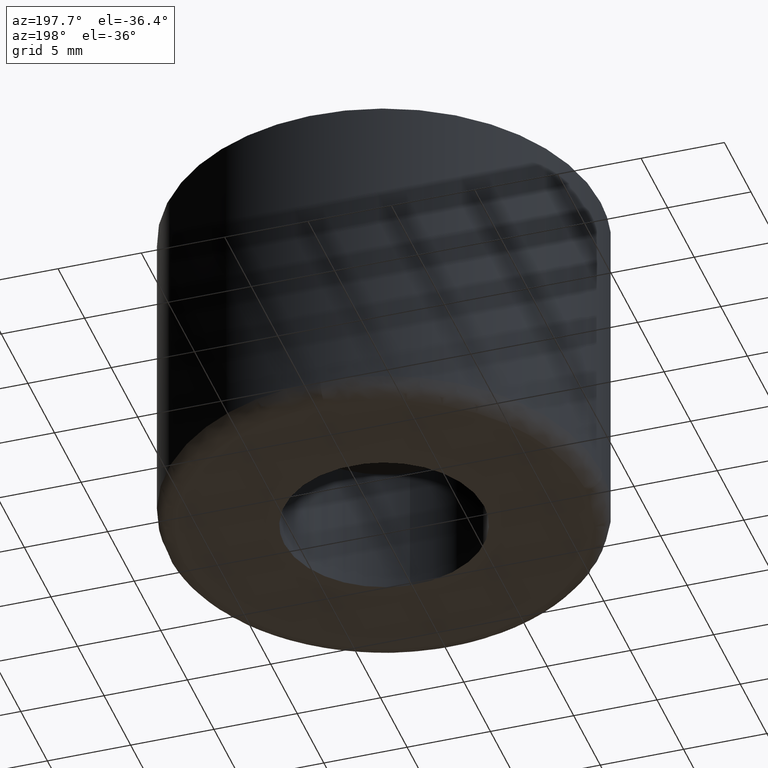
[diagram: clean part render]
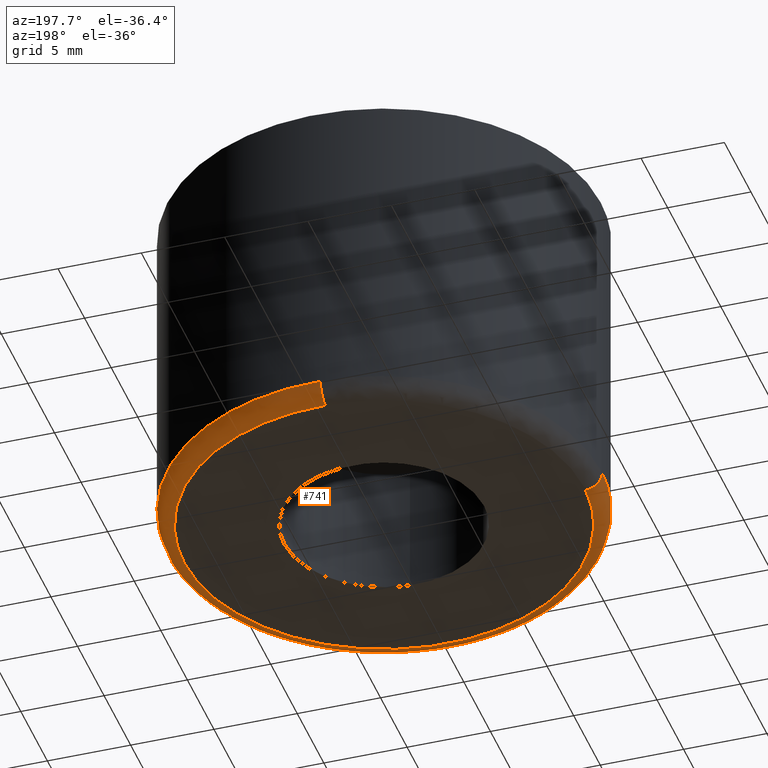
[diagram: same view with one face highlighted and labeled with its STEP entity id]
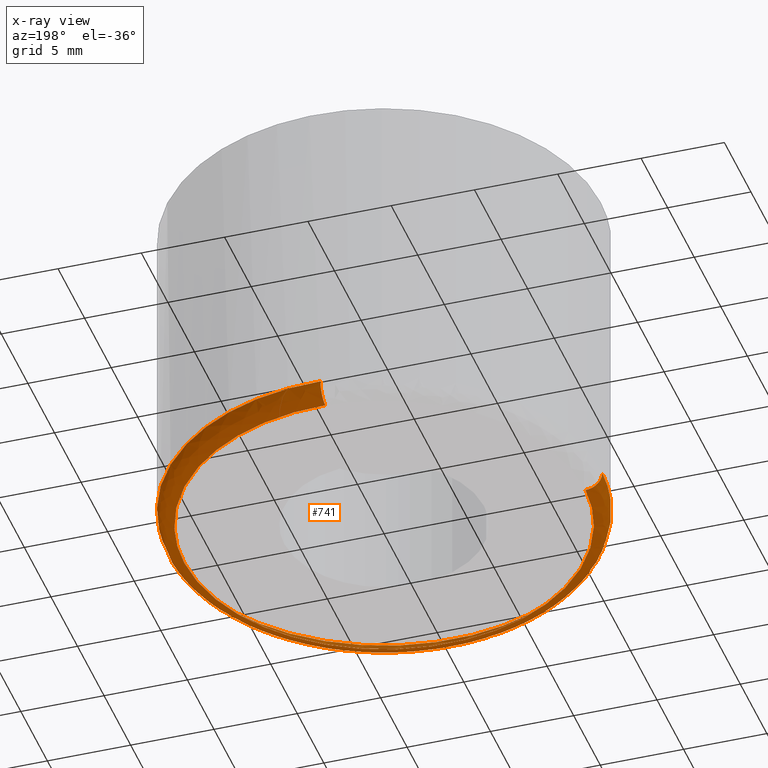
[diagram: x-ray of the same camera — body ghosted, the highlighted face saturated]
A machine part, auxiliary view. The second image highlights one B-rep face of the part: STEP entity #741.
The next image is the same camera in x-ray: the body ghosted, the highlighted face saturated — about 0% of this face is hidden behind the body in this view.
In plain terms, the highlighted face is a freeform B-spline surface patch.
Its self-contained STEP definition (entity closure, byte-faithful):
#62=CARTESIAN_POINT('',(12.687596999485550,-2.832822334452530,1.000000000000004));
#63=VERTEX_POINT('',#62);
#64=CARTESIAN_POINT('',(1.019960697844671,-12.959925932457899,1.000000000000026));
#65=VERTEX_POINT('',#64);
#66=CARTESIAN_POINT('',(12.687596999485553,-2.832822334452531,1.000000000000004));
#67=CARTESIAN_POINT('',(10.594716131196428,-12.206381947379535,1.000000000000014));
#68=CARTESIAN_POINT('',(1.019960697844671,-12.959925932457905,1.000000000000026));
#76=(BOUNDED_CURVE()B_SPLINE_CURVE(2,(#66,#67,#68),.UNSPECIFIED.,.F.,.U.)B_SPLINE_CURVE_WITH_KNOTS((3,3),(0.537286560370751,0.736331400453952),.UNSPECIFIED.)CURVE()GEOMETRIC_REPRESENTATION_ITEM()RATIONAL_B_SPLINE_CURVE((0.925662740296602,0.762027680026814,0.969723564491107))REPRESENTATION_ITEM(''));
#77=EDGE_CURVE('',#63,#65,#76,.T.);
#135=CARTESIAN_POINT('',(13.0,0.0,1.000000000000014));
#136=VERTEX_POINT('',#135);
#137=CARTESIAN_POINT('',(13.0,0.0,1.000000000000014));
#138=CARTESIAN_POINT('',(12.999999999999996,-1.433637033025100,1.000000000000014));
#139=CARTESIAN_POINT('',(12.687596999485551,-2.832822334452530,1.000000000000004));
#147=(BOUNDED_CURVE()B_SPLINE_CURVE(2,(#137,#138,#139),.UNSPECIFIED.,.F.,.U.)B_SPLINE_CURVE_WITH_KNOTS((3,3),(0.500000000000000,0.537286560370751),.UNSPECIFIED.)CURVE()GEOMETRIC_REPRESENTATION_ITEM()RATIONAL_B_SPLINE_CURVE((1.0,0.956316077258115,0.925662740296602))REPRESENTATION_ITEM(''));
#148=EDGE_CURVE('',#136,#63,#147,.T.);
#150=CARTESIAN_POINT('',(-0.326691240763947,12.995894460682880,0.999999999856145));
#151=VERTEX_POINT('',#150);
#152=CARTESIAN_POINT('',(-0.326691240763947,12.995894460682887,0.999999999856145));
#153=CARTESIAN_POINT('',(-0.163371417604494,13.000000000000004,1.000000000000014));
#154=CARTESIAN_POINT('',(0.0,13.0,1.000000000000014));
#155=CARTESIAN_POINT('',(13.0,13.0,1.000000000000014));
#156=CARTESIAN_POINT('',(13.0,0.0,1.000000000000014));
#164=(BOUNDED_CURVE()B_SPLINE_CURVE(2,(#152,#153,#154,#155,#156),.UNSPECIFIED.,.F.,.U.)B_SPLINE_CURVE_WITH_KNOTS((3,2,3),(0.245579891769793,0.250000000000000,0.500000000000000),.UNSPECIFIED.)CURVE()GEOMETRIC_REPRESENTATION_ITEM()RATIONAL_B_SPLINE_CURVE((0.989826157681542,0.994821521091803,1.0,0.707106781186547,1.0))REPRESENTATION_ITEM(''));
#165=EDGE_CURVE('',#151,#136,#164,.T.);
#182=CARTESIAN_POINT('',(-12.995894460682891,-0.326691240763720,0.999999999856132));
#183=VERTEX_POINT('',#182);
#197=CARTESIAN_POINT('',(1.019960697844671,-12.959925932457905,1.000000000000026));
#198=CARTESIAN_POINT('',(0.510767600280531,-13.000000000000004,1.000000000000014));
#199=CARTESIAN_POINT('',(0.0,-13.0,1.000000000000014));
#200=CARTESIAN_POINT('',(-12.677312390347860,-13.0,1.000000000000014));
#201=CARTESIAN_POINT('',(-12.995894460682889,-0.326691240763720,0.999999999856132));
#209=(BOUNDED_CURVE()B_SPLINE_CURVE(2,(#197,#198,#199,#200,#201),.UNSPECIFIED.,.F.,.U.)B_SPLINE_CURVE_WITH_KNOTS((3,2,3),(0.736331400453952,0.750000000000000,0.995579891769800),.UNSPECIFIED.)CURVE()GEOMETRIC_REPRESENTATION_ITEM()RATIONAL_B_SPLINE_CURVE((0.969723564491107,0.983986239529144,1.0,0.712285260094736,0.989826157681558))REPRESENTATION_ITEM(''));
#210=EDGE_CURVE('',#65,#183,#209,.T.);
#644=CARTESIAN_POINT('',(-0.326630081745611,12.993461533070644,1.069724239128093));
#645=CARTESIAN_POINT('',(12.666831451325031,13.320091614816256,1.069724239128092));
#646=CARTESIAN_POINT('',(12.993461533070644,0.326630081745612,1.069724239128093));
#647=CARTESIAN_POINT('',(13.320091614816256,-12.666831451325027,1.069724239128092));
#648=CARTESIAN_POINT('',(0.326630081745616,-12.993461533070644,1.069724239128093));
#649=CARTESIAN_POINT('',(-12.666831451325027,-13.320091614816258,1.069724239128092));
#650=CARTESIAN_POINT('',(-12.993461533070644,-0.326630081745616,1.069724239128093));
#651=CARTESIAN_POINT('',(-0.328644839144800,13.073609303370695,-0.077337010691865));
#652=CARTESIAN_POINT('',(12.744964464225895,13.402254142515494,-0.077337010691865));
#653=CARTESIAN_POINT('',(13.073609303370695,0.328644839144801,-0.077337010691865));
#654=CARTESIAN_POINT('',(13.402254142515497,-12.744964464225887,-0.077337010691865));
#655=CARTESIAN_POINT('',(0.328644839144805,-13.073609303370695,-0.077337010691865));
#656=CARTESIAN_POINT('',(-12.744964464225887,-13.402254142515497,-0.077337010691865));
#657=CARTESIAN_POINT('',(-13.073609303370695,-0.328644839144806,-0.077337010691865));
#658=CARTESIAN_POINT('',(-0.299818330100537,11.926880458318786,0.002407728772290));
#659=CARTESIAN_POINT('',(11.627062128218251,12.226698788419325,0.002407728772290));
#660=CARTESIAN_POINT('',(11.926880458318786,0.299818330100537,0.002407728772290));
#661=CARTESIAN_POINT('',(12.226698788419325,-11.627062128218247,0.002407728772290));
#662=CARTESIAN_POINT('',(0.299818330100541,-11.926880458318786,0.002407728772290));
#663=CARTESIAN_POINT('',(-11.627062128218245,-12.226698788419325,0.002407728772290));
#664=CARTESIAN_POINT('',(-11.926880458318786,-0.299818330100541,0.002407728772290));
#672=(BOUNDED_SURFACE()B_SPLINE_SURFACE(2,2,((#644,#651,#658),(#645,#652,#659),(#646,#653,#660),(#647,#654,#661),(#648,#655,#662),(#649,#656,#663),(#650,#657,#664)),.UNSPECIFIED.,.F.,.F.,.U.)B_SPLINE_SURFACE_WITH_KNOTS((3,2,2,3),(3,3),(0.0,21.535072963510679,43.070145927021350,64.605218890532029),(0.0,1.822371771683137),.UNSPECIFIED.)GEOMETRIC_REPRESENTATION_ITEM()RATIONAL_B_SPLINE_SURFACE(((0.910892963910916,0.599412685931412,0.915967102494346),(0.644098591716522,0.423848774951344,0.647686549517545),(0.910892963910916,0.599412685931412,0.915967102494346),(0.644098591716522,0.423848774951344,0.647686549517545),(0.910892963910916,0.599412685931412,0.915967102494346),(0.644098591716522,0.423848774951344,0.647686549517545),(0.910892963910916,0.599412685931412,0.915967102494346)))REPRESENTATION_ITEM('')SURFACE());
#673=CARTESIAN_POINT('',(-0.301561146003583,11.996210305784739,1.557101E-014));
#674=VERTEX_POINT('',#673);
#675=CARTESIAN_POINT('',(12.0,0.0,0.0));
#676=VERTEX_POINT('',#675);
#677=CARTESIAN_POINT('',(-0.301561146003583,11.996210305784739,1.557101E-014));
#678=CARTESIAN_POINT('',(-0.150804385299742,12.000000000000004,1.421085E-014));
#679=CARTESIAN_POINT('',(0.0,12.0,1.421085E-014));
#680=CARTESIAN_POINT('',(12.0,12.0,1.421085E-014));
#681=CARTESIAN_POINT('',(12.0,0.0,1.421085E-014));
#689=(BOUNDED_CURVE()B_SPLINE_CURVE(2,(#677,#678,#679,#680,#681),.UNSPECIFIED.,.F.,.U.)B_SPLINE_CURVE_WITH_KNOTS((3,2,3),(0.245579891775080,0.250000000000000,0.500000000000000),.UNSPECIFIED.)CURVE()GEOMETRIC_REPRESENTATION_ITEM()RATIONAL_B_SPLINE_CURVE((0.989826157693493,0.994821521097997,1.0,0.707106781186548,1.0))REPRESENTATION_ITEM(''));
#690=EDGE_CURVE('',#674,#676,#689,.T.);
#691=ORIENTED_EDGE('',*,*,#690,.F.);
#692=CARTESIAN_POINT('',(-0.326691240763947,12.995894460682887,0.999999999856145));
#693=CARTESIAN_POINT('',(-0.326691240756156,12.995894460395249,0.000000068782938));
#694=CARTESIAN_POINT('',(-0.301561146003583,11.996210305784748,1.557101E-014));
#702=(BOUNDED_CURVE()B_SPLINE_CURVE(2,(#692,#693,#694),.UNSPECIFIED.,.F.,.U.)B_SPLINE_CURVE_WITH_KNOTS((3,3),(-1.723441281688515,-0.263586950115615),.UNSPECIFIED.)CURVE()GEOMETRIC_REPRESENTATION_ITEM()RATIONAL_B_SPLINE_CURVE((0.883897567034251,0.626638739835554,0.888510383522929))REPRESENTATION_ITEM(''));
#703=EDGE_CURVE('',#151,#674,#702,.T.);
#704=ORIENTED_EDGE('',*,*,#703,.F.);
#705=ORIENTED_EDGE('',*,*,#165,.T.);
#706=ORIENTED_EDGE('',*,*,#148,.T.);
#707=ORIENTED_EDGE('',*,*,#77,.T.);
#708=ORIENTED_EDGE('',*,*,#210,.T.);
#709=CARTESIAN_POINT('',(-11.996209041027869,-0.301561114222903,1.529176E-012));
#710=VERTEX_POINT('',#709);
#711=CARTESIAN_POINT('',(-12.995894460682893,-0.326691240763720,0.999999999856132));
#712=CARTESIAN_POINT('',(-12.995894460395222,-0.326691240756155,-0.000001230765381));
#713=CARTESIAN_POINT('',(-11.996209041027864,-0.301561114222903,1.529176E-012));
#721=(BOUNDED_CURVE()B_SPLINE_CURVE(2,(#711,#712,#713),.UNSPECIFIED.,.F.,.U.)B_SPLINE_CURVE_WITH_KNOTS((3,3),(-1.723441281688490,-0.263585605131602),.UNSPECIFIED.)CURVE()GEOMETRIC_REPRESENTATION_ITEM()RATIONAL_B_SPLINE_CURVE((0.883897567034243,0.626638502819439,0.888510866055314))REPRESENTATION_ITEM(''));
#722=EDGE_CURVE('',#183,#710,#721,.T.);
#723=ORIENTED_EDGE('',*,*,#722,.T.);
#724=CARTESIAN_POINT('',(12.0,0.0,0.0));
#725=CARTESIAN_POINT('',(12.000000007731089,-11.999999999805656,9.608599E-015));
#726=CARTESIAN_POINT('',(0.000000622919063,-11.999999984341040,7.741964E-013));
#727=CARTESIAN_POINT('',(-11.702133291494871,-11.999999969260285,1.519805E-012));
#728=CARTESIAN_POINT('',(-11.996209041027868,-0.301561114222903,1.529176E-012));
#736=(BOUNDED_CURVE()B_SPLINE_CURVE(2,(#724,#725,#726,#727,#728),.UNSPECIFIED.,.F.,.U.)B_SPLINE_CURVE_WITH_KNOTS((3,2,3),(0.500000000000000,0.750000000000000,0.995579891772257),.UNSPECIFIED.)CURVE()GEOMETRIC_REPRESENTATION_ITEM()RATIONAL_B_SPLINE_CURVE((1.0,0.707106781186548,1.0,0.712285260091858,0.989826157687112))REPRESENTATION_ITEM(''));
#737=EDGE_CURVE('',#676,#710,#736,.T.);
#738=ORIENTED_EDGE('',*,*,#737,.F.);
#739=EDGE_LOOP('',(#691,#704,#705,#706,#707,#708,#723,#738));
#740=FACE_OUTER_BOUND('',#739,.T.);
#741=ADVANCED_FACE('',(#740),#672,.T.);